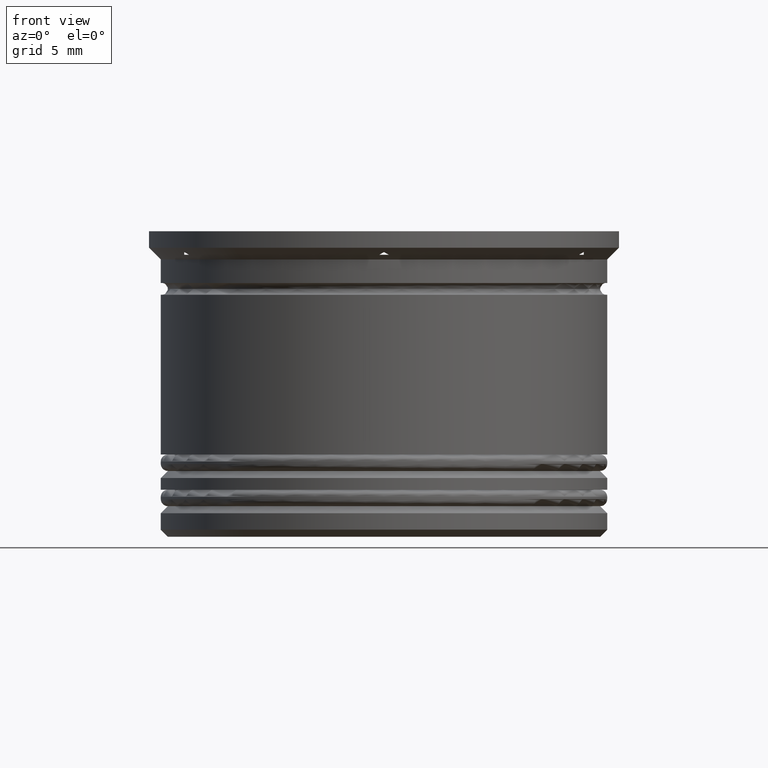
[diagram: clean part render]
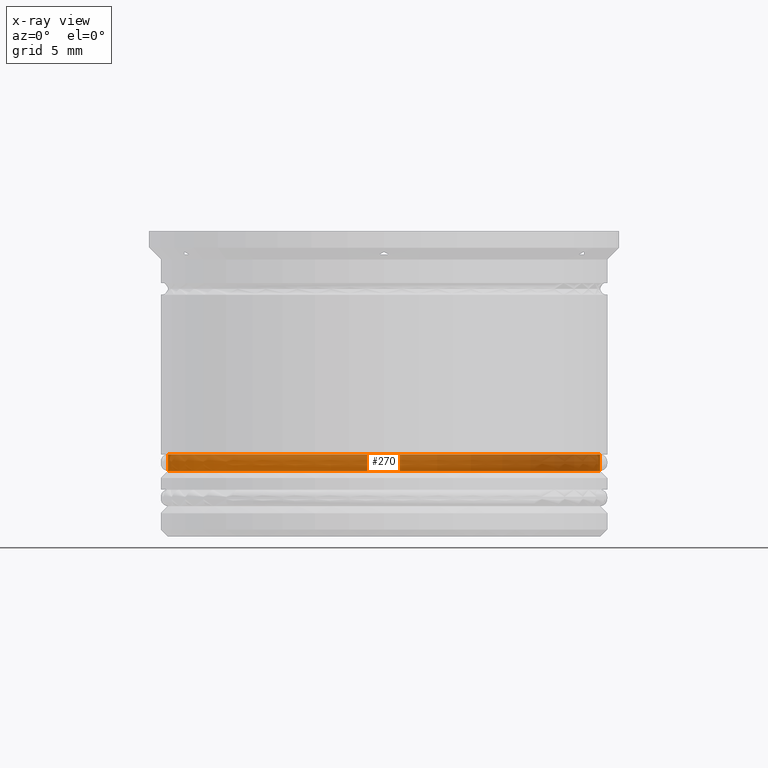
[diagram: x-ray — body ghosted, one internal face saturated and labeled with its STEP entity id]
A machine part, front view, then the same camera in x-ray: the body is ghosted and one INTERNAL B-rep face — a face not visible from any outside direction — is saturated and labeled: STEP entity #270.
In plain terms, the highlighted cylindrical surface (partial cylindrical patch) has radius 9.2 mm, axis along (-0, -0, 1).
Its self-contained STEP definition (entity closure, byte-faithful):
#18 = DIRECTION ( 'NONE',  ( -0.000000000000000000, -0.000000000000000000, 1.000000000000000000 ) ) ;
#40 = CARTESIAN_POINT ( 'NONE',  ( -9.199999999999999289, 1.126675055215564822E-15, 0.000000000000000000 ) ) ;
#82 = VERTEX_POINT ( 'NONE', #1287 ) ;
#160 = ORIENTED_EDGE ( 'NONE', *, *, #1821, .F. ) ;
#171 = CARTESIAN_POINT ( 'NONE',  ( 0.000000000000000000, 0.000000000000000000, -10.20000000000000639 ) ) ;
#192 = EDGE_CURVE ( 'NONE', #942, #1565, #1515, .T. ) ;
#223 = CARTESIAN_POINT ( 'NONE',  ( 9.199999999999999289, 0.000000000000000000, -10.20000000000000639 ) ) ;
#270 = ADVANCED_FACE ( 'NONE', ( #2155 ), #1822, .T. ) ;
#319 = CARTESIAN_POINT ( 'NONE',  ( 0.000000000000000000, 0.000000000000000000, 0.000000000000000000 ) ) ;
#372 = LINE ( 'NONE', #40, #497 ) ;
#411 = DIRECTION ( 'NONE',  ( 1.000000000000000000, 0.000000000000000000, 0.000000000000000000 ) ) ;
#497 = VECTOR ( 'NONE', #558, 1000.000000000000000 ) ;
#553 = EDGE_CURVE ( 'NONE', #1565, #82, #372, .T. ) ;
#558 = DIRECTION ( 'NONE',  ( -0.000000000000000000, -0.000000000000000000, 1.000000000000000000 ) ) ;
#587 = CARTESIAN_POINT ( 'NONE',  ( 9.199999999999999289, 0.000000000000000000, -9.500000000000000000 ) ) ;
#615 = EDGE_LOOP ( 'NONE', ( #1017, #1315, #160, #1911 ) ) ;
#828 = DIRECTION ( 'NONE',  ( -1.000000000000000000, 0.000000000000000000, 0.000000000000000000 ) ) ;
#862 = CARTESIAN_POINT ( 'NONE',  ( -9.199999999999999289, 1.126675055215564822E-15, -10.20000000000000639 ) ) ;
#918 = AXIS2_PLACEMENT_3D ( 'NONE', #1905, #1236, #411 ) ;
#942 = VERTEX_POINT ( 'NONE', #223 ) ;
#989 = DIRECTION ( 'NONE',  ( -0.000000000000000000, -0.000000000000000000, 1.000000000000000000 ) ) ;
#1017 = ORIENTED_EDGE ( 'NONE', *, *, #192, .T. ) ;
#1055 = CIRCLE ( 'NONE', #918, 9.199999999999999289 ) ;
#1148 = LINE ( 'NONE', #1529, #1407 ) ;
#1150 = AXIS2_PLACEMENT_3D ( 'NONE', #319, #989, #2016 ) ;
#1236 = DIRECTION ( 'NONE',  ( -0.000000000000000000, -0.000000000000000000, 1.000000000000000000 ) ) ;
#1287 = CARTESIAN_POINT ( 'NONE',  ( -9.199999999999999289, 1.126675055215564822E-15, -9.500000000000000000 ) ) ;
#1315 = ORIENTED_EDGE ( 'NONE', *, *, #553, .T. ) ;
#1407 = VECTOR ( 'NONE', #18, 1000.000000000000000 ) ;
#1452 = EDGE_CURVE ( 'NONE', #942, #1920, #1148, .T. ) ;
#1515 = CIRCLE ( 'NONE', #1856, 9.199999999999999289 ) ;
#1529 = CARTESIAN_POINT ( 'NONE',  ( 9.199999999999999289, 0.000000000000000000, 0.000000000000000000 ) ) ;
#1565 = VERTEX_POINT ( 'NONE', #862 ) ;
#1821 = EDGE_CURVE ( 'NONE', #1920, #82, #1055, .T. ) ;
#1822 = CYLINDRICAL_SURFACE ( 'NONE', #1150, 9.199999999999999289 ) ;
#1845 = DIRECTION ( 'NONE',  ( -0.000000000000000000, -0.000000000000000000, 1.000000000000000000 ) ) ;
#1856 = AXIS2_PLACEMENT_3D ( 'NONE', #171, #1845, #828 ) ;
#1905 = CARTESIAN_POINT ( 'NONE',  ( 0.000000000000000000, 0.000000000000000000, -9.500000000000000000 ) ) ;
#1911 = ORIENTED_EDGE ( 'NONE', *, *, #1452, .F. ) ;
#1920 = VERTEX_POINT ( 'NONE', #587 ) ;
#2016 = DIRECTION ( 'NONE',  ( 1.000000000000000000, 0.000000000000000000, 0.000000000000000000 ) ) ;
#2155 = FACE_OUTER_BOUND ( 'NONE', #615, .T. ) ;